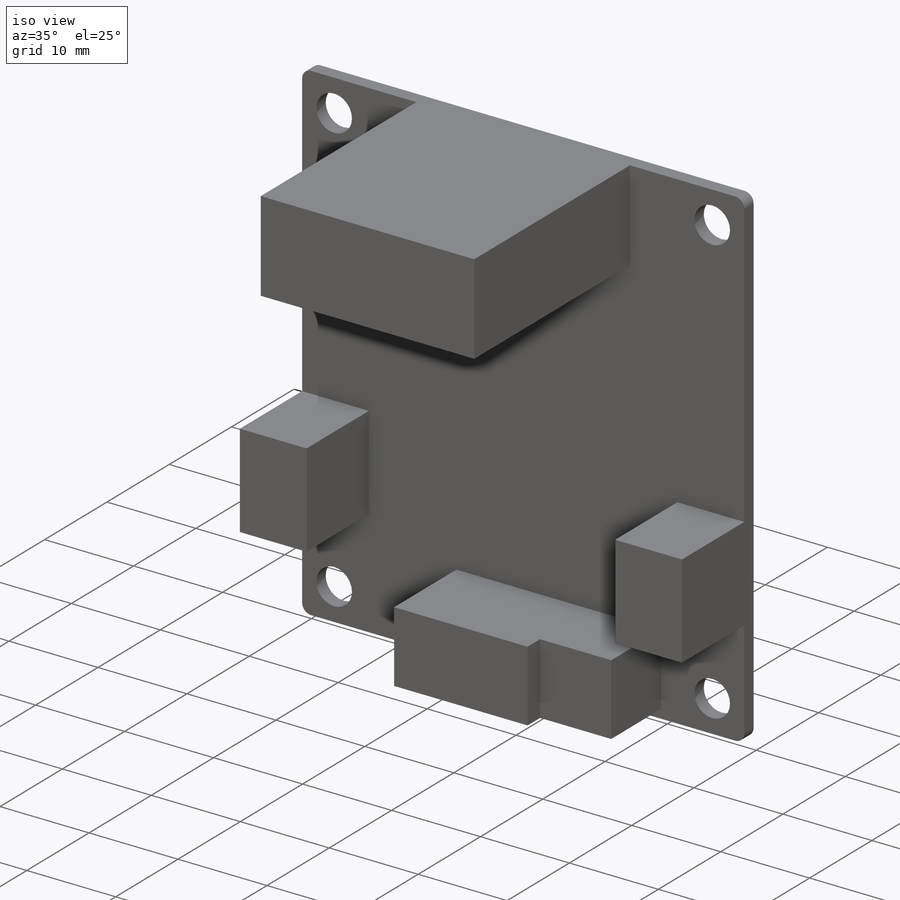
[diagram: iso view]
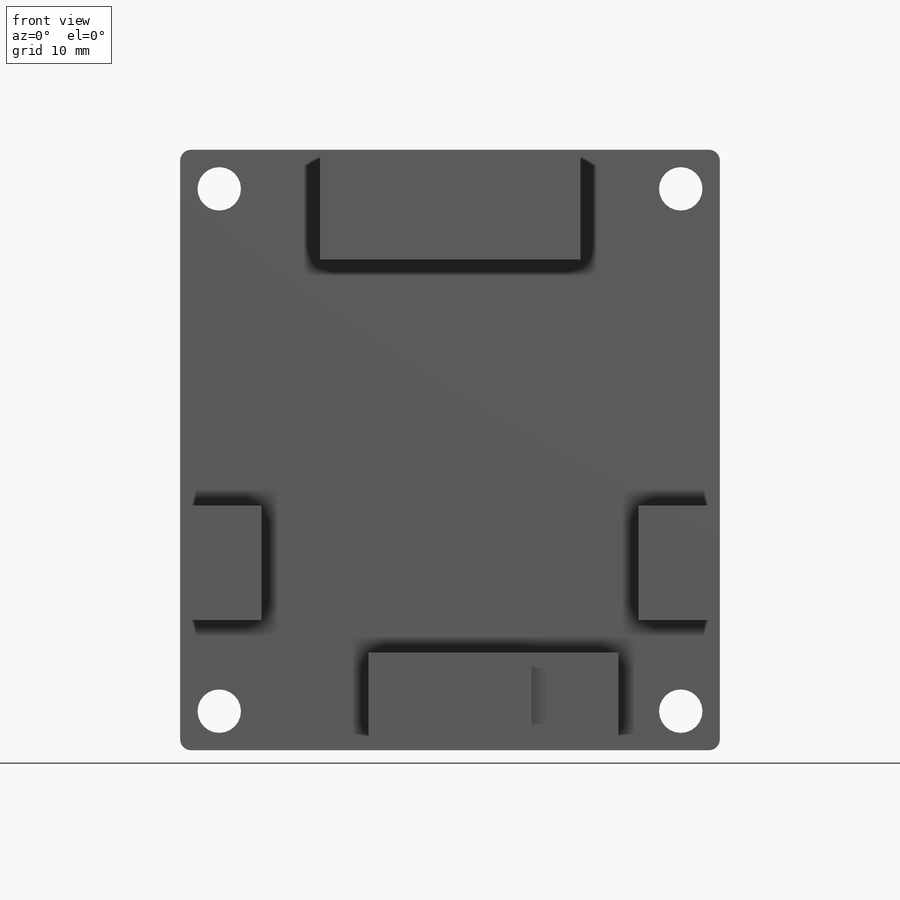
[diagram: front view]
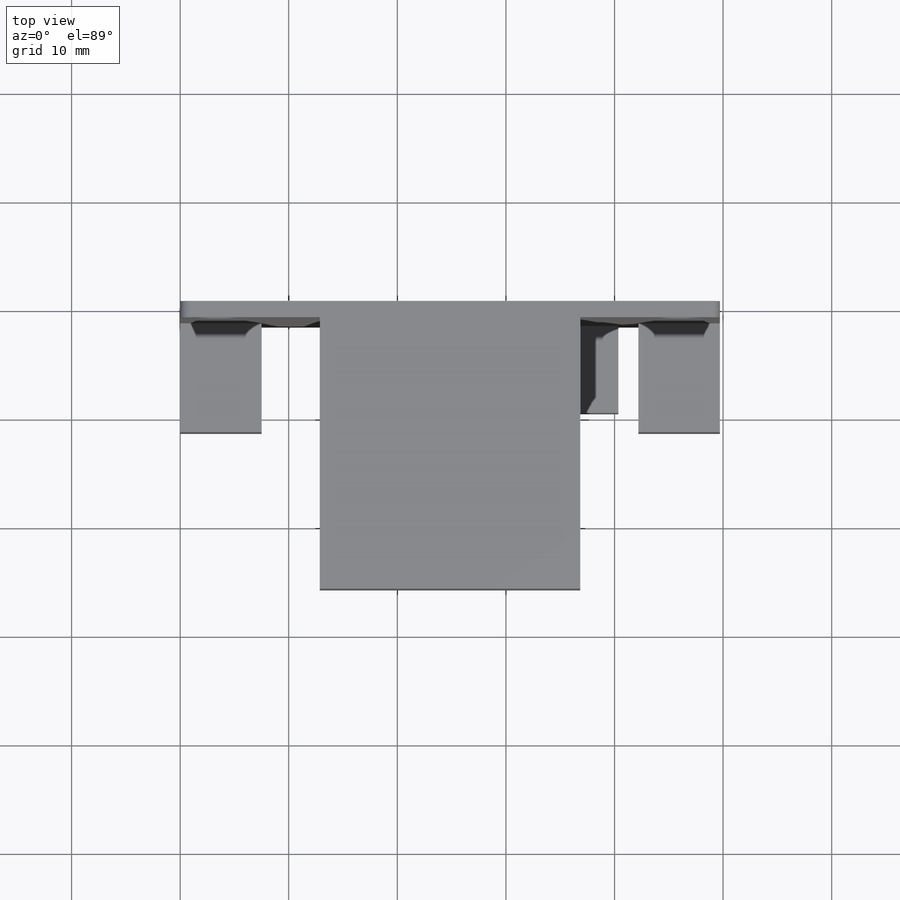
[diagram: top view]
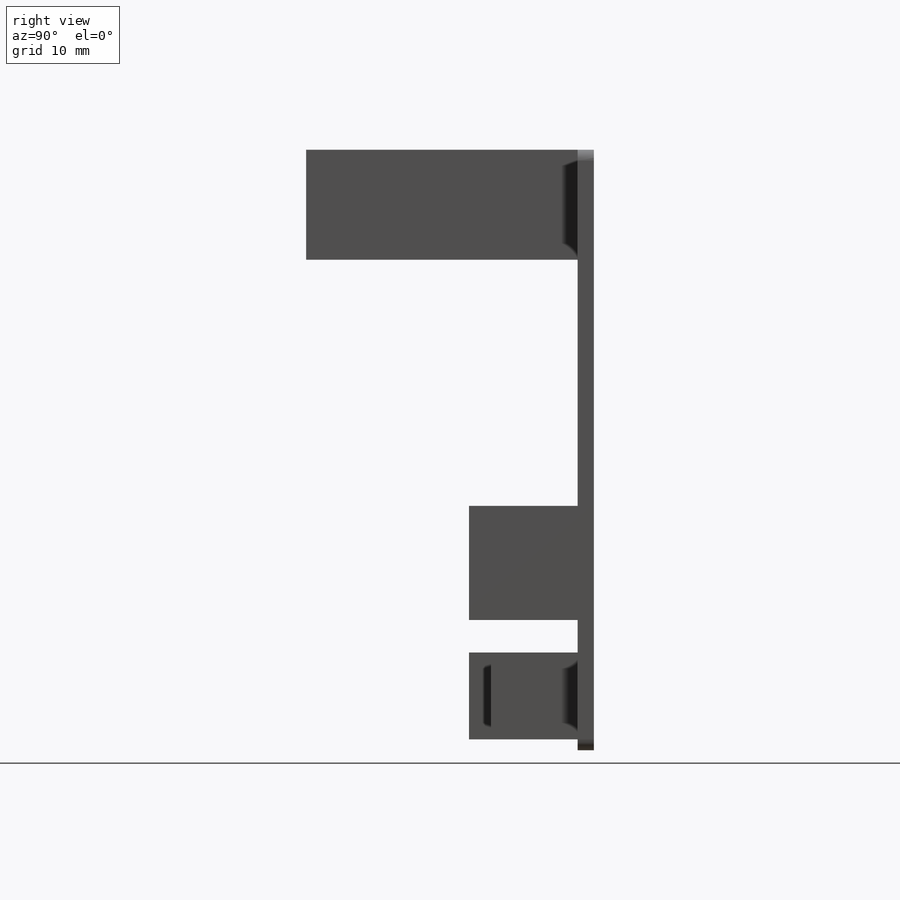
[diagram: right view]
SOLIDWORKS PART (.sldprt)
format: sldprt  version: not decoded by parser v0  size: 226,304 bytes
history: native  units: mm
features: sketch x5, extrude x5, plane x3, material x1, fillet x1 (+10 scaffold rows collapsed)
feature tree (25):
  scaffold x10  (default folders/planes/origin — collapsed)
  material  "Matériau <non spécifié>"
  plane  "Plan de face"
  plane  "Plan de dessus"
  plane  "Plan de droite"
  sketch  "Esquisse1"  dims[D3=4.0mm D1=55.3mm D2=49.7mm D4=3.6mm D5=3.6mm]
  extrude  "Boss.-Extru.1"  Depth=1.5mm
  fillet  "Congé1"  Radius=1mm
  sketch  "Esquisse2"  dims[D1=24.0mm D2=12.85mm D3=12.85mm]
  extrude  "Boss.-Extru.2"  Depth=25mm
  sketch  "Esquisse3"  dims[D1=10.5mm D2=7.5mm D3=12.0mm]
  extrude  "Boss.-Extru.3"  Depth=10mm
  sketch  "Esquisse4"  dims[D1=15.0mm D2=8.0mm D3=17.35mm D4=9.0mm]
  extrude  "Boss.-Extru.4"  Depth=10mm
  sketch  "Esquisse5"  dims[D1=8.0mm D2=8.0mm]
  extrude  "Boss.-Extru.5"  Depth=8mm
decode coverage: 11 of 11 modeling features carry decoded parameters
note: suppression state not decoded; provenance and decode notes live in map.json
